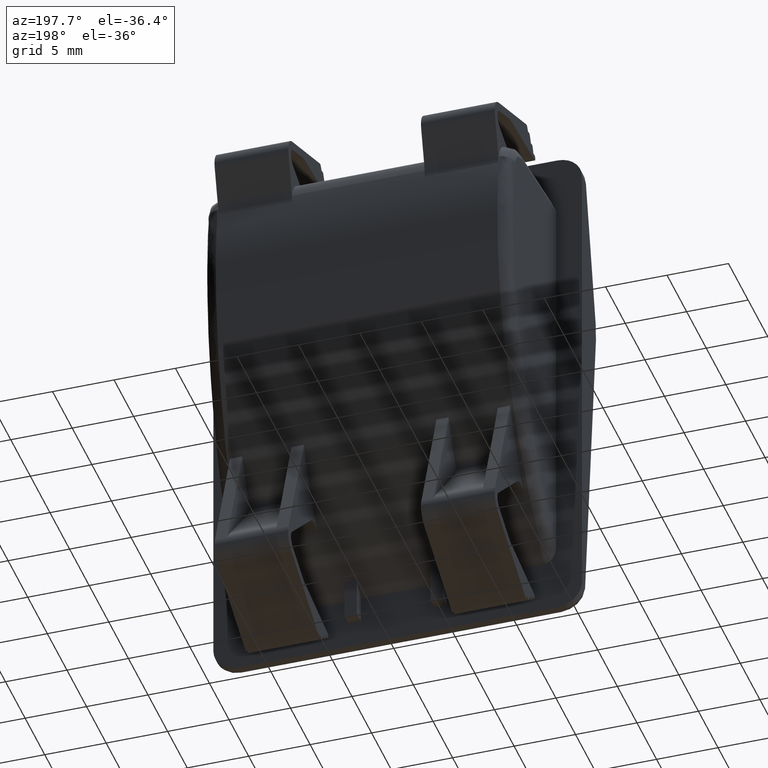
[diagram: clean part render]
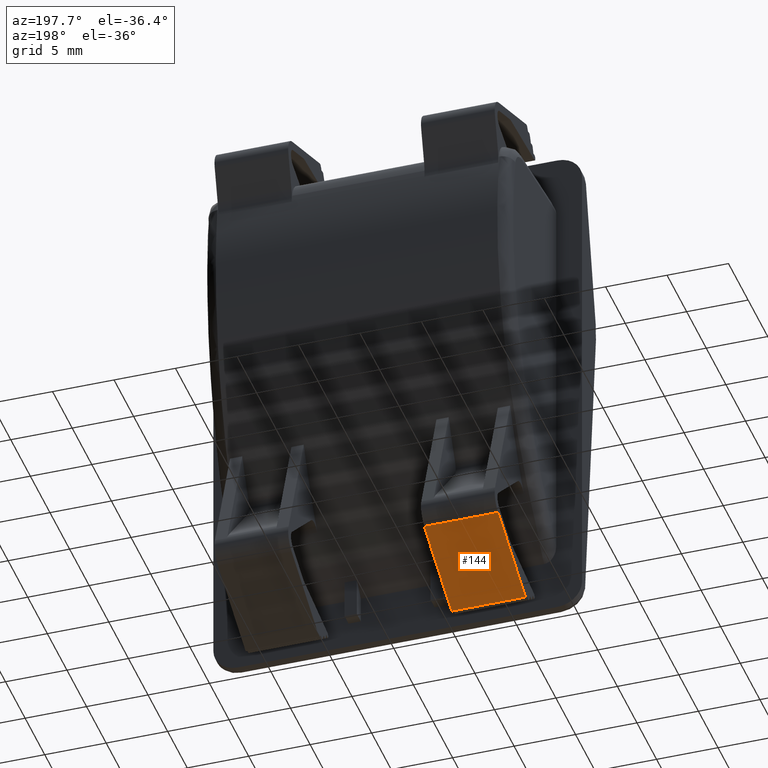
[diagram: same view with one face highlighted and labeled with its STEP entity id]
A machine part, auxiliary view. The second image highlights one B-rep face of the part: STEP entity #144.
In plain terms, the highlighted planar face has unit normal (0, 0.4226, -0.9063).
Its self-contained STEP definition (entity closure, byte-faithful):
#144=ADVANCED_FACE('',(#1290),#1289,.T.);
#1289=PLANE('',#3028);
#1290=FACE_OUTER_BOUND('',#3029,.T.);
#3025=CARTESIAN_POINT('',(-1.20000000000E+001,6.46871499156E+000,-2.95329931415E+001));
#3026=DIRECTION('',(0.00000000000E+000,4.22618261739E-001,-9.06307787037E-001));
#3027=DIRECTION('',(0.00000000000E+000,9.06307787037E-001,4.22618261739E-001));
#3028=AXIS2_PLACEMENT_3D('',#3025,#3026,#3027);
#3029=EDGE_LOOP('',(#4594,#4595,#4596,#4597));
#4594=ORIENTED_EDGE('',*,*,#5503,.F.);
#4595=ORIENTED_EDGE('',*,*,#5504,.F.);
#4596=ORIENTED_EDGE('',*,*,#5505,.T.);
#4597=ORIENTED_EDGE('',*,*,#5501,.T.);
#5501=EDGE_CURVE('',#8126,#8119,#8127,.T.);
#5503=EDGE_CURVE('',#8139,#8119,#8140,.T.);
#5504=EDGE_CURVE('',#8146,#8139,#8147,.T.);
#5505=EDGE_CURVE('',#8146,#8126,#8153,.T.);
#8119=VERTEX_POINT('',#10930);
#8126=VERTEX_POINT('',#10935);
#8127=LINE('',#10936,#10937);
#8139=VERTEX_POINT('',#10943);
#8140=LINE('',#10944,#10945);
#8146=VERTEX_POINT('',#10947);
#8147=LINE('',#10948,#10949);
#8153=LINE('',#10951,#10952);
#10930=CARTESIAN_POINT('',(-1.14000000000E+001,7.16574758446E+000,-2.92079615054E+001));
#10935=CARTESIAN_POINT('',(-5.40000000000E+000,7.16574758446E+000,-2.92079615054E+001));
#10936=CARTESIAN_POINT('',(-5.40000000000E+000,7.16574758446E+000,-2.92079615054E+001));
#10937=VECTOR('',#10938,6.00000000000E+000);
#10938=DIRECTION('',(-1.00000000000E+000,0.00000000000E+000,0.00000000000E+000));
#10943=CARTESIAN_POINT('',(-1.14000000000E+001,1.41360735135E+001,-2.59576451449E+001));
#10944=CARTESIAN_POINT('',(-1.14000000000E+001,1.41360735135E+001,-2.59576451449E+001));
#10945=VECTOR('',#10946,7.69090371803E+000);
#10946=DIRECTION('',(0.00000000000E+000,-9.06307787037E-001,-4.22618261739E-001));
#10947=CARTESIAN_POINT('',(-5.40000000000E+000,1.41360735135E+001,-2.59576451449E+001));
#10948=CARTESIAN_POINT('',(-5.40000000000E+000,1.41360735135E+001,-2.59576451449E+001));
#10949=VECTOR('',#10950,6.00000000000E+000);
#10950=DIRECTION('',(-1.00000000000E+000,0.00000000000E+000,0.00000000000E+000));
#10951=CARTESIAN_POINT('',(-5.40000000000E+000,1.41360735135E+001,-2.59576451449E+001));
#10952=VECTOR('',#10953,7.69090371803E+000);
#10953=DIRECTION('',(0.00000000000E+000,-9.06307787037E-001,-4.22618261739E-001));